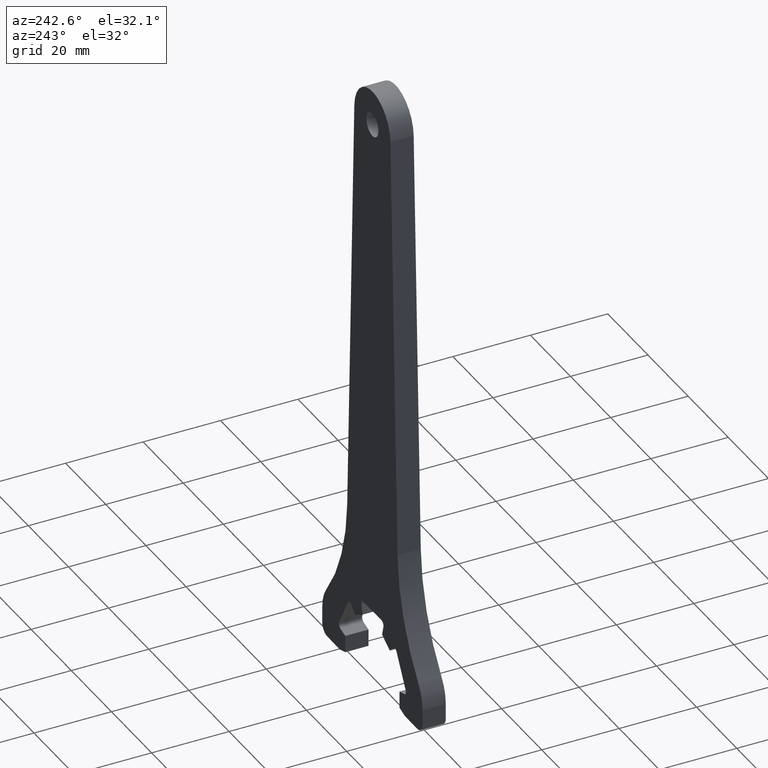
[diagram: clean part render]
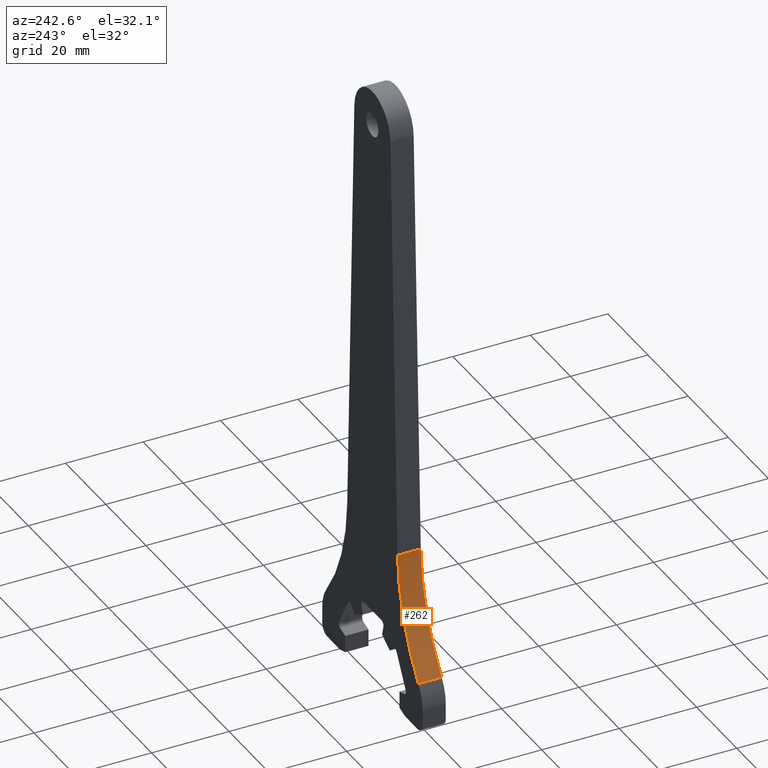
[diagram: same view with one face highlighted and labeled with its STEP entity id]
A machine part, auxiliary view. The second image highlights one B-rep face of the part: STEP entity #262.
In plain terms, the highlighted cylindrical surface (partial cylindrical patch) has radius 50 mm, axis along (-0, -1, -0).
Its self-contained STEP definition (entity closure, byte-faithful):
#88 = CARTESIAN_POINT ( 'NONE',  ( -62.49999999999988600, 3.000000000000000000, 40.13847406888149300 ) ) ;
#102 = EDGE_LOOP ( 'NONE', ( #394, #302, #1295, #490 ) ) ;
#151 = DIRECTION ( 'NONE',  ( -0.0000000000000000000, -1.000000000000000000, -0.0000000000000000000 ) ) ;
#188 = DIRECTION ( 'NONE',  ( -0.0000000000000000000, -1.000000000000000000, -0.0000000000000000000 ) ) ;
#200 = CIRCLE ( 'NONE', #989, 50.00000000000004300 ) ;
#249 = CARTESIAN_POINT ( 'NONE',  ( -12.52581510148198500, 3.000000000000000000, 38.53197360864291500 ) ) ;
#259 = VERTEX_POINT ( 'NONE', #601 ) ;
#262 = ADVANCED_FACE ( 'NONE', ( #824 ), #1323, .F. ) ;
#302 = ORIENTED_EDGE ( 'NONE', *, *, #1151, .F. ) ;
#394 = ORIENTED_EDGE ( 'NONE', *, *, #1229, .F. ) ;
#398 = AXIS2_PLACEMENT_3D ( 'NONE', #1179, #563, #1290 ) ;
#490 = ORIENTED_EDGE ( 'NONE', *, *, #928, .T. ) ;
#563 = DIRECTION ( 'NONE',  ( 0.0000000000000000000, 1.000000000000000000, -0.0000000000000000000 ) ) ;
#564 = CARTESIAN_POINT ( 'NONE',  ( -62.49999999999988600, -3.000000000000000000, 40.13847406888149300 ) ) ;
#601 = CARTESIAN_POINT ( 'NONE',  ( -22.91666666666676700, 3.000000000000000000, 9.590810946766188400 ) ) ;
#617 = VECTOR ( 'NONE', #188, 1000.000000000000000 ) ;
#648 = CARTESIAN_POINT ( 'NONE',  ( -12.52581510148198500, -3.000000000000000000, 38.53197360864291500 ) ) ;
#654 = CARTESIAN_POINT ( 'NONE',  ( -12.52581510148198500, 3.000000000000000000, 38.53197360864291500 ) ) ;
#666 = DIRECTION ( 'NONE',  ( 0.0000000000000000000, 0.0000000000000000000, 1.000000000000000000 ) ) ;
#734 = VERTEX_POINT ( 'NONE', #648 ) ;
#770 = VERTEX_POINT ( 'NONE', #654 ) ;
#791 = EDGE_CURVE ( 'NONE', #770, #259, #1086, .T. ) ;
#820 = AXIS2_PLACEMENT_3D ( 'NONE', #88, #1234, #1081 ) ;
#824 = FACE_OUTER_BOUND ( 'NONE', #102, .T. ) ;
#912 = VECTOR ( 'NONE', #151, 1000.000000000000000 ) ;
#928 = EDGE_CURVE ( 'NONE', #259, #1208, #1158, .T. ) ;
#989 = AXIS2_PLACEMENT_3D ( 'NONE', #564, #1291, #666 ) ;
#1081 = DIRECTION ( 'NONE',  ( 0.0000000000000000000, 0.0000000000000000000, -1.000000000000000000 ) ) ;
#1086 = CIRCLE ( 'NONE', #398, 50.00000000000004300 ) ;
#1151 = EDGE_CURVE ( 'NONE', #770, #734, #1177, .T. ) ;
#1158 = LINE ( 'NONE', #1197, #617 ) ;
#1177 = LINE ( 'NONE', #249, #912 ) ;
#1179 = CARTESIAN_POINT ( 'NONE',  ( -62.49999999999988600, 3.000000000000000000, 40.13847406888149300 ) ) ;
#1197 = CARTESIAN_POINT ( 'NONE',  ( -22.91666666666676700, 3.000000000000000000, 9.590810946766188400 ) ) ;
#1208 = VERTEX_POINT ( 'NONE', #1285 ) ;
#1229 = EDGE_CURVE ( 'NONE', #734, #1208, #200, .T. ) ;
#1234 = DIRECTION ( 'NONE',  ( -0.0000000000000000000, -1.000000000000000000, -0.0000000000000000000 ) ) ;
#1285 = CARTESIAN_POINT ( 'NONE',  ( -22.91666666666676700, -3.000000000000000000, 9.590810946766188400 ) ) ;
#1290 = DIRECTION ( 'NONE',  ( 0.0000000000000000000, 0.0000000000000000000, 1.000000000000000000 ) ) ;
#1291 = DIRECTION ( 'NONE',  ( 0.0000000000000000000, 1.000000000000000000, -0.0000000000000000000 ) ) ;
#1295 = ORIENTED_EDGE ( 'NONE', *, *, #791, .T. ) ;
#1323 = CYLINDRICAL_SURFACE ( 'NONE', #820, 50.00000000000004300 ) ;